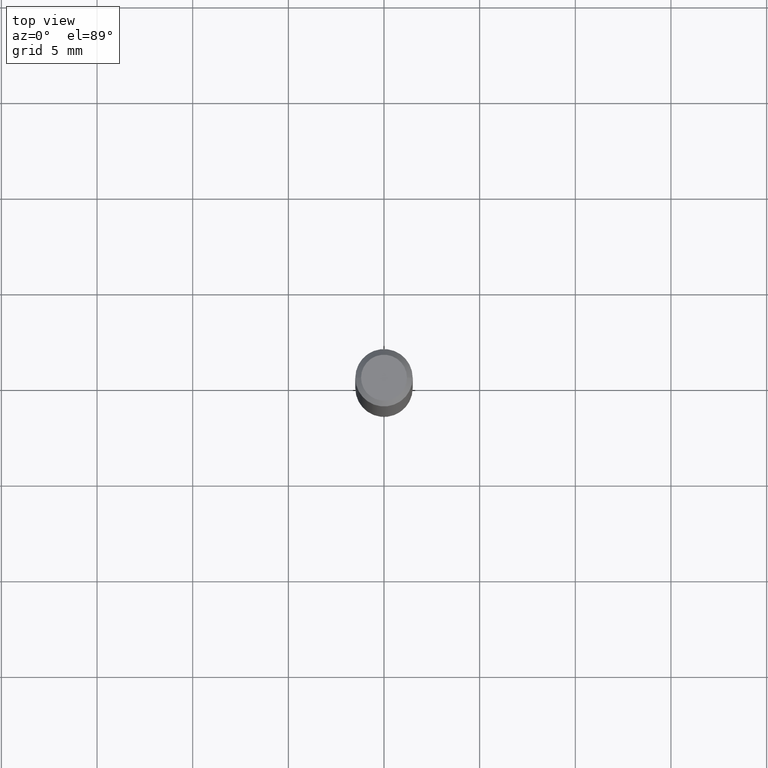
[diagram: clean part render]
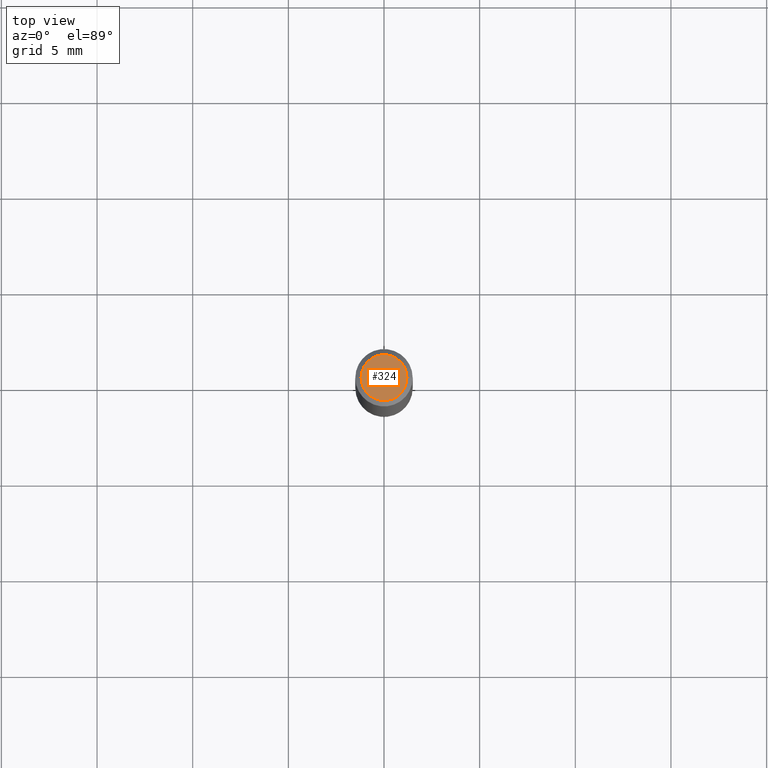
[diagram: same view with one face highlighted and labeled with its STEP entity id]
A machine part, top view. The second image highlights one B-rep face of the part: STEP entity #324.
In plain terms, the highlighted planar face has unit normal (0, -0, -1).
Its self-contained STEP definition (entity closure, byte-faithful):
#9 = PLANE ( 'NONE',  #240 ) ;
#15 = CIRCLE ( 'NONE', #340, 0.04724000000000000421 ) ;
#59 = AXIS2_PLACEMENT_3D ( 'NONE', #69, #457, #320 ) ;
#69 = CARTESIAN_POINT ( 'NONE',  ( 8.265746106709734507E-48, -1.180129479067563789E-33, -3.380025165646692144E-19 ) ) ;
#81 = EDGE_CURVE ( 'NONE', #176, #141, #15, .T. ) ;
#133 = DIRECTION ( 'NONE',  ( -2.445468806185136597E-29, 3.491481338843145583E-15, 1.000000000000000000 ) ) ;
#141 = VERTEX_POINT ( 'NONE', #444 ) ;
#176 = VERTEX_POINT ( 'NONE', #185 ) ;
#185 = CARTESIAN_POINT ( 'NONE',  ( 0.04724000000000000421, -3.852183633974369345E-16, -3.380025165621689721E-19 ) ) ;
#223 = EDGE_CURVE ( 'NONE', #141, #176, #253, .T. ) ;
#236 = CARTESIAN_POINT ( 'NONE',  ( 4.132873053354867254E-48, -5.900647395337818946E-34, -1.690012582823346072E-19 ) ) ;
#240 = AXIS2_PLACEMENT_3D ( 'NONE', #236, #317, #354 ) ;
#253 = CIRCLE ( 'NONE', #59, 0.04724000000000000421 ) ;
#317 = DIRECTION ( 'NONE',  ( 2.438088387897960049E-29, -3.491481338843145188E-15, -1.000000000000000000 ) ) ;
#320 = DIRECTION ( 'NONE',  ( 1.000000000000000000, -6.982962677686266711E-15, 4.876185090822587894E-29 ) ) ;
#324 = ADVANCED_FACE ( 'NONE', ( #466 ), #9, .F. ) ;
#332 = ORIENTED_EDGE ( 'NONE', *, *, #223, .T. ) ;
#340 = AXIS2_PLACEMENT_3D ( 'NONE', #473, #133, #465 ) ;
#354 = DIRECTION ( 'NONE',  ( -1.000000000000000000, 6.982962677686265922E-15, -4.876176775795935793E-29 ) ) ;
#444 = CARTESIAN_POINT ( 'NONE',  ( -0.04724000000000000421, 3.504923541997677355E-16, -3.380025165670481712E-19 ) ) ;
#457 = DIRECTION ( 'NONE',  ( -2.445468806185136597E-29, 3.491481338843145583E-15, 1.000000000000000000 ) ) ;
#465 = DIRECTION ( 'NONE',  ( 1.000000000000000000, -6.982962677686266711E-15, 4.876185090822587894E-29 ) ) ;
#466 = FACE_OUTER_BOUND ( 'NONE', #467, .T. ) ;
#467 = EDGE_LOOP ( 'NONE', ( #332, #485 ) ) ;
#473 = CARTESIAN_POINT ( 'NONE',  ( 8.265746106709734507E-48, -1.180129479067563789E-33, -3.380025165646692144E-19 ) ) ;
#485 = ORIENTED_EDGE ( 'NONE', *, *, #81, .T. ) ;